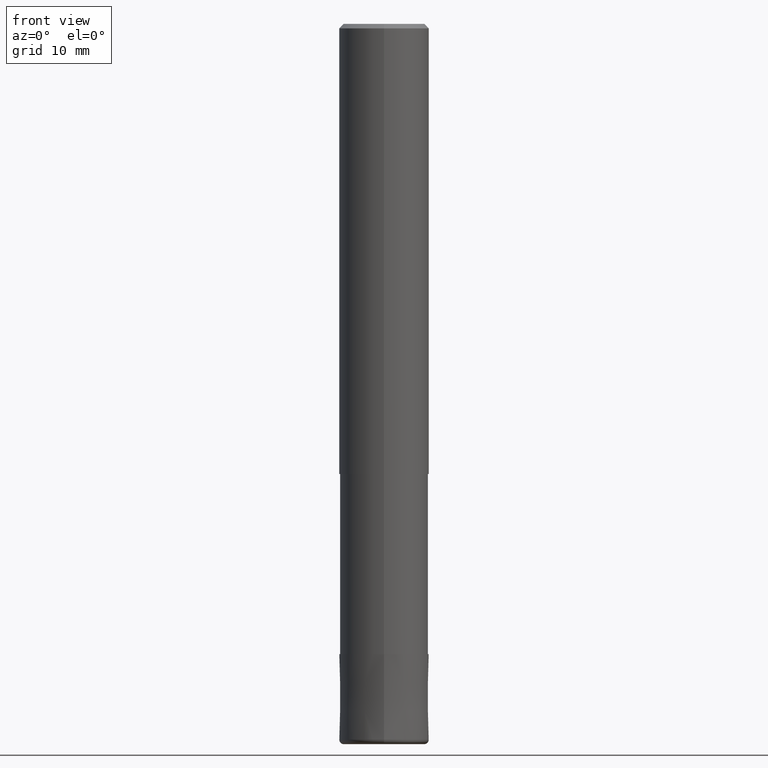
[diagram: clean part render]
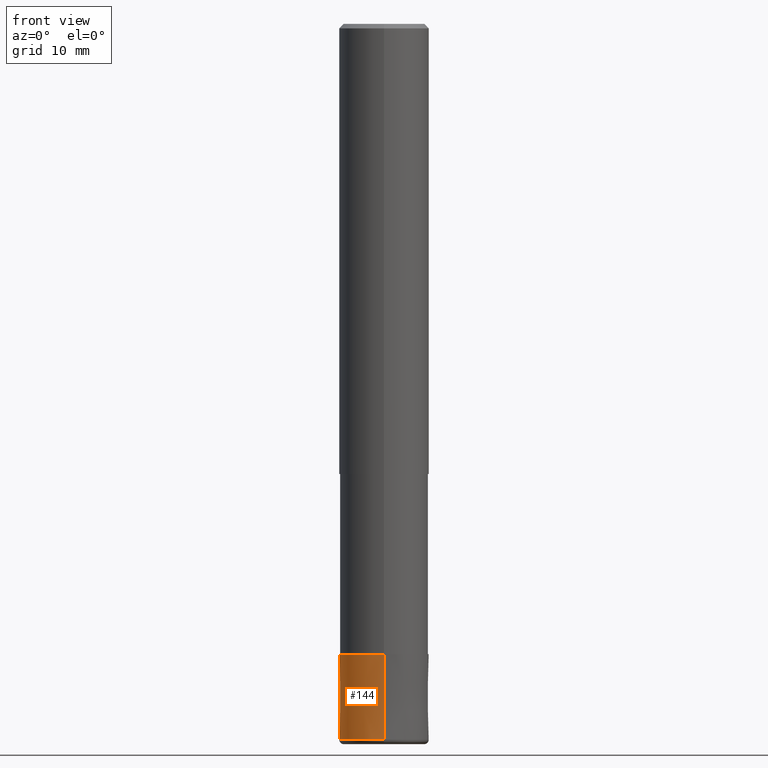
[diagram: same view with one face highlighted and labeled with its STEP entity id]
A machine part, front view. The second image highlights one B-rep face of the part: STEP entity #144.
In plain terms, the highlighted conical surface has half-angle 0.001 deg.
Its self-contained STEP definition (entity closure, byte-faithful):
#98=VERTEX_POINT('',#236);
#104=VERTEX_POINT('',#242);
#110=EDGE_CURVE('',#160,#104,#249,.T.);
#116=EDGE_CURVE('',#104,#208,#255,.T.);
#144=ADVANCED_FACE('',(#286),#287,.T.);
#160=VERTEX_POINT('',#304);
#182=EDGE_CURVE('',#98,#208,#329,.T.);
#188=EDGE_CURVE('',#98,#160,#338,.T.);
#208=VERTEX_POINT('',#361);
#236=CARTESIAN_POINT('',(6.12303176911189E-016,-5.0,-79.5));
#242=CARTESIAN_POINT('',(0.0,4.9999,-70.0));
#249=CIRCLE('',#397,4.9999);
#255=LINE('',#405,#406);
#286=FACE_OUTER_BOUND('',#440,.T.);
#287=CONICAL_SURFACE('',#441,4.99995,1.05263157890604E-005);
#304=CARTESIAN_POINT('',(6.1229093084765E-016,-4.9999,-70.0));
#329=CIRCLE('',#497,5.0);
#338=LINE('',#507,#508);
#361=CARTESIAN_POINT('',(0.0,5.0,-79.5));
#397=AXIS2_PLACEMENT_3D('',#562,#563,#564);
#405=CARTESIAN_POINT('',(-6.1229705387942E-016,4.99995,-74.75));
#406=VECTOR('',#568,1.0);
#440=EDGE_LOOP('',(#603,#604,#605,#606));
#441=AXIS2_PLACEMENT_3D('',#607,#608,#609);
#497=AXIS2_PLACEMENT_3D('',#661,#662,#663);
#507=CARTESIAN_POINT('',(6.1229705387942E-016,-4.99995,-74.75));
#508=VECTOR('',#680,1.0);
#562=CARTESIAN_POINT('',(0.0,0.0,-70.0));
#563=DIRECTION('',(0.0,0.0,-1.0));
#564=DIRECTION('',(0.0,1.0,0.0));
#568=DIRECTION('',(-1.28905931973861E-021,1.0526315788866E-005,-0.999999999944598));
#603=ORIENTED_EDGE('',*,*,#116,.T.);
#604=ORIENTED_EDGE('',*,*,#182,.F.);
#605=ORIENTED_EDGE('',*,*,#188,.T.);
#606=ORIENTED_EDGE('',*,*,#110,.T.);
#607=CARTESIAN_POINT('',(0.0,0.0,-74.75));
#608=DIRECTION('',(0.0,-0.0,-1.0));
#609=DIRECTION('',(0.0,1.0,0.0));
#661=CARTESIAN_POINT('',(0.0,0.0,-79.5));
#662=DIRECTION('',(0.0,0.0,-1.0));
#663=DIRECTION('',(0.0,1.0,0.0));
#680=DIRECTION('',(-1.28905931973861E-021,1.0526315788866E-005,0.999999999944598));